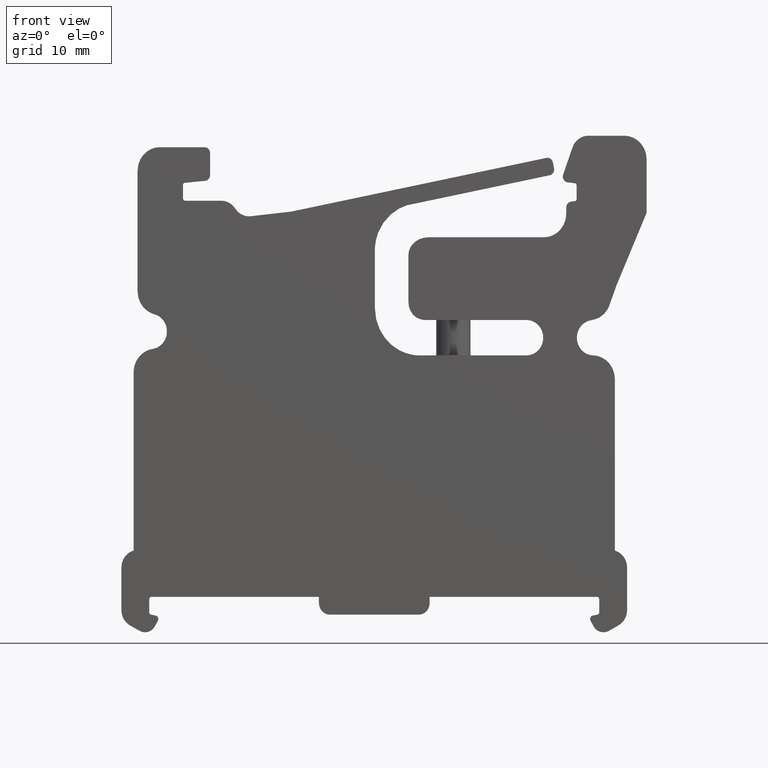
[diagram: clean part render]
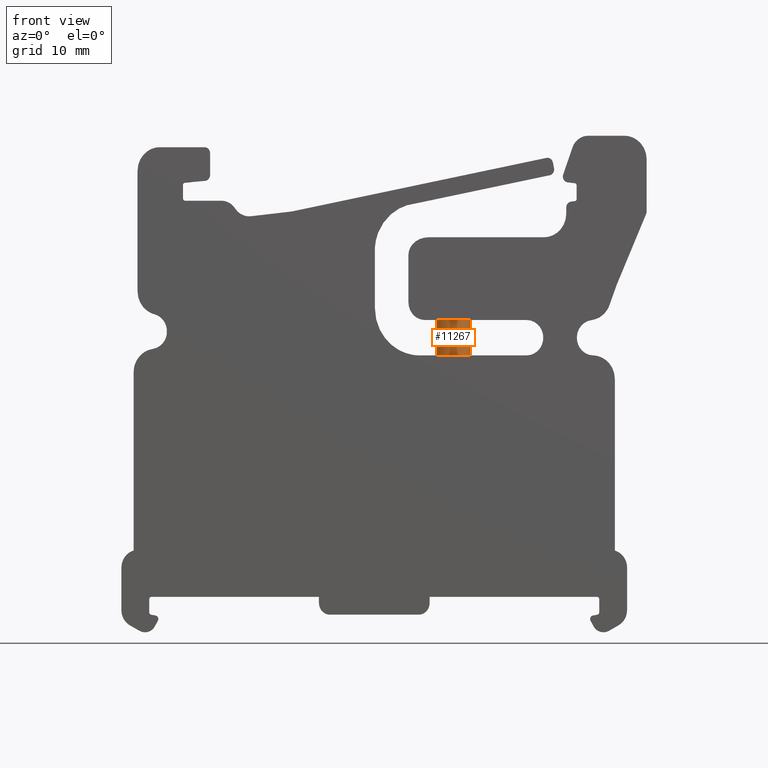
[diagram: same view with one face highlighted and labeled with its STEP entity id]
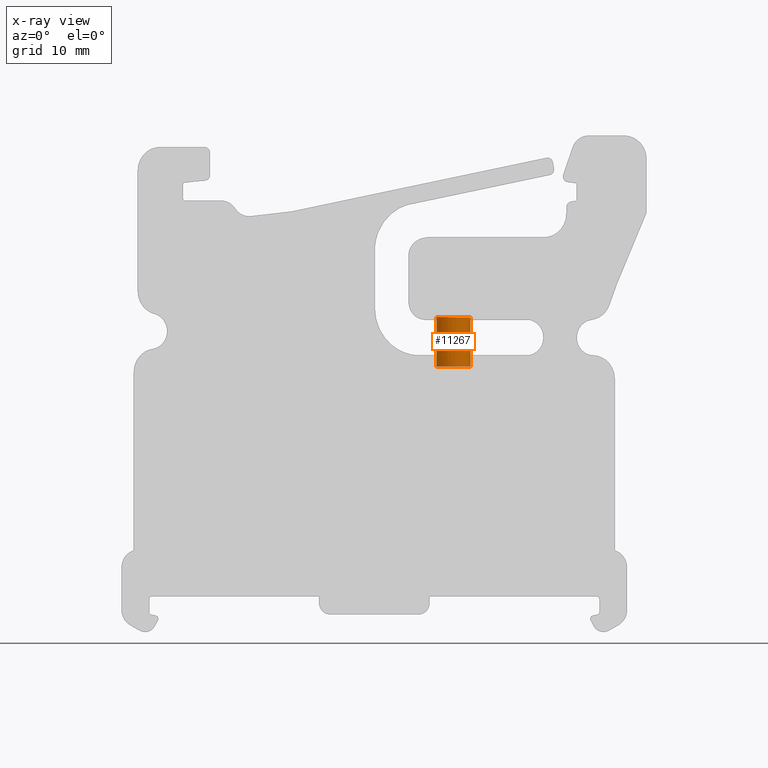
[diagram: x-ray of the same camera — body ghosted, the highlighted face saturated]
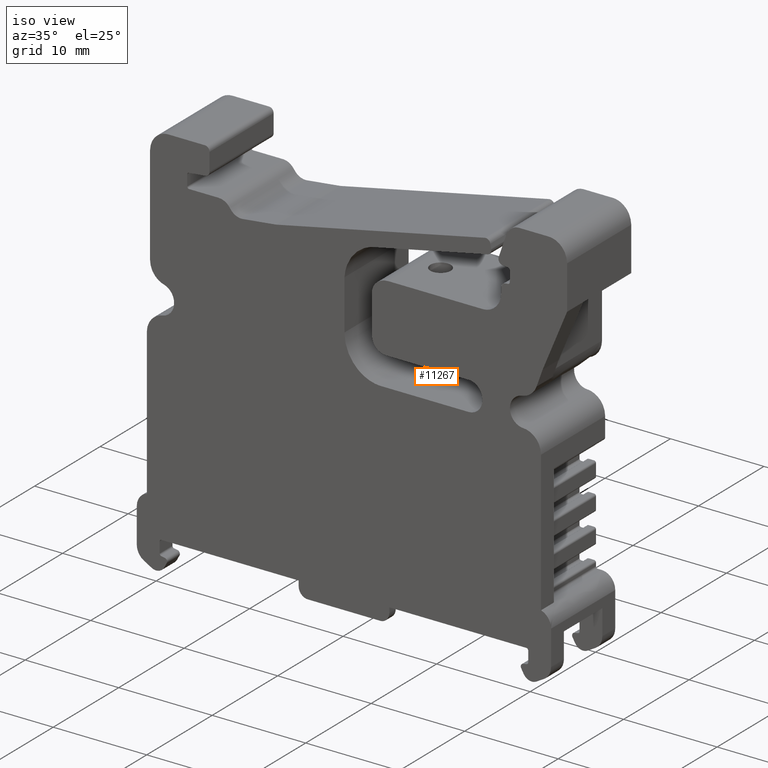
[diagram: same view with one face highlighted and labeled with its STEP entity id]
A machine part, front view. The second image highlights one B-rep face of the part: STEP entity #11267.
The next image is the same camera in x-ray: the body ghosted, the highlighted face saturated — about 0% of this face is hidden behind the body in this view.
A second angle (iso view) of the same face is appended — the face is thin or edge-on in the first view.
In plain terms, the highlighted cylindrical surface (edge-blend (fillet) strip) has radius 1.5 mm, axis along (0, 0, 1).
Its self-contained STEP definition (entity closure, byte-faithful):
#777 = CARTESIAN_POINT ( 'NONE',  ( 7.706126464098908900, -6.311681279718484000, 23.83777751962060200 ) ) ;
#778 = CARTESIAN_POINT ( 'NONE',  ( 8.450559934356162400, -5.100292388536536800, 23.82327950318708800 ) ) ;
#781 = CARTESIAN_POINT ( 'NONE',  ( 5.450559934355388800, -5.199340132450612600, 23.87365383469179000 ) ) ;
#783 = CARTESIAN_POINT ( 'NONE',  ( 7.148653334748710000, -6.501240858012377700, 23.84778392394264300 ) ) ;
#784 = CARTESIAN_POINT ( 'NONE',  ( 5.490368832863732800, -5.396183791605958300, 23.87313317620825300 ) ) ;
#787 = CARTESIAN_POINT ( 'NONE',  ( 5.959508571042352500, -6.131458011339132600, 23.86662233133113300 ) ) ;
#788 = CARTESIAN_POINT ( 'NONE',  ( 8.298760356083160900, -5.666084541952942600, 23.82633134167186700 ) ) ;
#789 = CARTESIAN_POINT ( 'NONE',  ( 6.199691146673516500, -6.303470601035267700, 23.86308437286961100 ) ) ;
#792 = CARTESIAN_POINT ( 'NONE',  ( 8.402784193818526100, -5.389298135093917500, 23.82424547217910400 ) ) ;
#793 = CARTESIAN_POINT ( 'NONE',  ( 6.851553377010880300, -6.501246158652237200, 23.85278132313753500 ) ) ;
#797 = CARTESIAN_POINT ( 'NONE',  ( 7.873304543639230600, -6.199910674312582700, 23.83462388712151300 ) ) ;
#799 = CARTESIAN_POINT ( 'NONE',  ( 6.036695960266840200, -6.194747501620542000, 23.86550208248679900 ) ) ;
#802 = CARTESIAN_POINT ( 'NONE',  ( 6.950559934355387000, -5.001244392011015400, 19.52865080002391100 ) ) ;
#803 = CARTESIAN_POINT ( 'NONE',  ( 7.345467924518651200, -6.461440713345344200, 23.84432812256055800 ) ) ;
#804 = CARTESIAN_POINT ( 'NONE',  ( 6.754172095427187500, -6.491536469148035100, 23.85438468809747200 ) ) ;
#805 = CARTESIAN_POINT ( 'NONE',  ( 5.751952101951098400, -5.924067118354830800, 23.86958626328775100 ) ) ;
#808 = CARTESIAN_POINT ( 'NONE',  ( 8.143993206412915200, -5.915200024481085200, 23.82938970231274600 ) ) ;
#809 = CARTESIAN_POINT ( 'NONE',  ( 5.640160396700505200, -5.756882026027278200, 23.87111319864494500 ) ) ;
#810 = CARTESIAN_POINT ( 'NONE',  ( 8.252733080739322000, -5.752205755740386700, 23.82724774541797100 ) ) ;
#811 = CARTESIAN_POINT ( 'NONE',  ( 6.285811323307142700, -6.349489530459564400, 23.86178293315120400 ) ) ;
#812 = CARTESIAN_POINT ( 'NONE',  ( 5.450559934355386100, -5.001244392011025200, 23.87365383469178300 ) ) ;
#813 = DIRECTION ( 'NONE',  ( 1.000000000000000000, 0.0000000000000000000, 0.0000000000000000000 ) ) ;
#814 = CARTESIAN_POINT ( 'NONE',  ( 6.467381506247728700, -6.424688902995595400, 23.85897667188788100 ) ) ;
#816 = CARTESIAN_POINT ( 'NONE',  ( 8.450559934355387900, -5.001244392011025200, 23.82327950318709100 ) ) ;
#817 = CARTESIAN_POINT ( 'NONE',  ( 8.080699253337019900, -5.992379971669011600, 23.83062625905680000 ) ) ;
#818 = DIRECTION ( 'NONE',  ( 0.0000000000000000000, 0.0000000000000000000, 1.000000000000000000 ) ) ;
#819 = CARTESIAN_POINT ( 'NONE',  ( 6.562581527659108200, -6.453487971578050900, 23.85747480751812700 ) ) ;
#820 = CARTESIAN_POINT ( 'NONE',  ( 8.440845759769883800, -5.197685644966060000, 23.82347664755502900 ) ) ;
#827 = CARTESIAN_POINT ( 'NONE',  ( 8.373975751182062100, -5.484508517029017800, 23.82482641437535900 ) ) ;
#1924 = CARTESIAN_POINT ( 'NONE',  ( 8.450559934355387900, -5.001244392011015400, 27.20009622668851500 ) ) ;
#1933 = LINE ( 'NONE', #1924, #3465 ) ;
#1952 = DIRECTION ( 'NONE',  ( 0.0000000000000000000, 0.0000000000000000000, 1.000000000000000000 ) ) ;
#1981 = CARTESIAN_POINT ( 'NONE',  ( 5.450559934355386100, -5.001244392011015400, 27.20009622668851500 ) ) ;
#1999 = LINE ( 'NONE', #1981, #3475 ) ;
#2000 = DIRECTION ( 'NONE',  ( 0.0000000000000000000, 0.0000000000000000000, 1.000000000000000000 ) ) ;
#3265 = AXIS2_PLACEMENT_3D ( 'NONE', #802, #818, #813 ) ;
#3274 = CIRCLE ( 'NONE', #3265, 1.500000000000001300 ) ;
#3465 = VECTOR ( 'NONE', #1952, 1000.000000000000000 ) ;
#3475 = VECTOR ( 'NONE', #2000, 1000.000000000000000 ) ;
#4110 = EDGE_LOOP ( 'NONE', ( #8450, #8468, #8471, #8446 ) ) ;
#5212 = CYLINDRICAL_SURFACE ( 'NONE', #8810, 1.500000000000001300 ) ;
#5222 = DIRECTION ( 'NONE',  ( 0.0000000000000000000, 0.0000000000000000000, 1.000000000000000000 ) ) ;
#5229 = CARTESIAN_POINT ( 'NONE',  ( 6.950559934355387000, -5.001244392011015400, 27.20009622668851500 ) ) ;
#5233 = FACE_OUTER_BOUND ( 'NONE', #4110, .T. ) ;
#5251 = DIRECTION ( 'NONE',  ( 1.000000000000000000, 0.0000000000000000000, 0.0000000000000000000 ) ) ;
#6420 = VERTEX_POINT ( 'NONE', #9936 ) ;
#6450 = VERTEX_POINT ( 'NONE', #9918 ) ;
#6452 = VERTEX_POINT ( 'NONE', #9941 ) ;
#6461 = VERTEX_POINT ( 'NONE', #9953 ) ;
#8446 = ORIENTED_EDGE ( 'NONE', *, *, #11778, .T. ) ;
#8450 = ORIENTED_EDGE ( 'NONE', *, *, #11610, .F. ) ;
#8468 = ORIENTED_EDGE ( 'NONE', *, *, #11777, .T. ) ;
#8471 = ORIENTED_EDGE ( 'NONE', *, *, #11594, .T. ) ;
#8810 = AXIS2_PLACEMENT_3D ( 'NONE', #5229, #5222, #5251 ) ;
#9918 = CARTESIAN_POINT ( 'NONE',  ( 8.450559934355387900, -5.001244392011015400, 19.52865080002391100 ) ) ;
#9936 = CARTESIAN_POINT ( 'NONE',  ( 5.450559934355386100, -5.001244392011025200, 23.87365383469178300 ) ) ;
#9941 = CARTESIAN_POINT ( 'NONE',  ( 5.450559934355386100, -5.001244392011015400, 19.52865080002391100 ) ) ;
#9953 = CARTESIAN_POINT ( 'NONE',  ( 8.450559934355387900, -5.001244392011025200, 23.82327950318709100 ) ) ;
#10646 = B_SPLINE_CURVE_WITH_KNOTS ( 'NONE', 3,
 ( #816, #778, #820, #792, #827, #788, #810, #808, #817, #797, #777, #803, #783, #793, #804, #819, #814, #811, #789, #799, #787, #805, #809, #784, #781, #812 ),
 .UNSPECIFIED., .F., .F.,
 ( 4, 2, 2, 2, 2, 2, 2, 2, 2, 2, 2, 2, 4 ),
 ( 0.002343435108683505800, 0.002636360280090019200, 0.002929285451496532200, 0.003222210622903045600, 0.003515135794309559100, 0.004100986137122579800, 0.004686836479935601500, 0.004979761651342109700, 0.005272686822748619600, 0.005565611994155127800, 0.005858537165561636900, 0.006444387508374657700, 0.007030237851187677600 ),
 .UNSPECIFIED. ) ;
#11267 = ADVANCED_FACE ( 'NONE', ( #5233 ), #5212, .T. ) ;
#11594 = EDGE_CURVE ( 'NONE', #6450, #6461, #1933, .T. ) ;
#11610 = EDGE_CURVE ( 'NONE', #6452, #6420, #1999, .T. ) ;
#11777 = EDGE_CURVE ( 'NONE', #6452, #6450, #3274, .T. ) ;
#11778 = EDGE_CURVE ( 'NONE', #6461, #6420, #10646, .T. ) ;